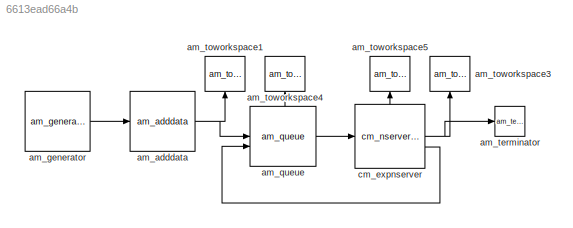
MODEL slx_6613ead66a4b
KIND model
CONFIG AbsTol = auto
CONFIG EnableMultiTasking = off
CONFIG FixedStep = auto
CONFIG MaxStep = auto
CONFIG MinStep = auto
CONFIG RelTol = 1e-3
CONFIG SampleTimeConstraint = Unconstrained
CONFIG SolverName = VariableStepAuto
CONFIG StartTime = 0.0
CONFIG StopTime = 10.0
BLOCK [Reference] am_adddata  REF=NSA_DEVS_LOGISTICS/am_adddata
  SourceBlock = NSA_DEVS_LOGISTICS/am_adddata
  SourceProductName = Logistics
  SourceType = Adddata
BLOCK [Reference] am_generator  REF=NSA_DEVS_SOURCES/am_generator
  SourceBlock = NSA_DEVS_SOURCES/am_generator
  SourceProductName = Sources
  SourceType = Generator
BLOCK [Reference] am_queue  REF=NSA_DEVS_LOGISTICS/am_queue
  SourceBlock = NSA_DEVS_LOGISTICS/am_queue
  SourceProductName = Logistics
  SourceType = Queue
BLOCK [Reference] am_terminator  REF=NSA_DEVS_LOGISTICS/am_terminator
  SourceBlock = NSA_DEVS_LOGISTICS/am_terminator
  SourceProductName = Logistics
  SourceType = Terminator
BLOCK [Reference] am_toworkspace1  REF=NSA_DEVS_SINKS/am_toworkspace
  NameLocation = right
  SourceBlock = NSA_DEVS_SINKS/am_toworkspace
  SourceProductName = Sinks
  SourceType = ToWorkspace
BLOCK [Reference] am_toworkspace3  REF=NSA_DEVS_SINKS/am_toworkspace
  NameLocation = right
  SourceBlock = NSA_DEVS_SINKS/am_toworkspace
  SourceProductName = Sinks
  SourceType = ToWorkspace
BLOCK [Reference] am_toworkspace4  REF=NSA_DEVS_SINKS/am_toworkspace
  NameLocation = right
  SourceBlock = NSA_DEVS_SINKS/am_toworkspace
  SourceProductName = Sinks
  SourceType = ToWorkspace
BLOCK [Reference] am_toworkspace5  REF=NSA_DEVS_SINKS/am_toworkspace
  NameLocation = right
  SourceBlock = NSA_DEVS_SINKS/am_toworkspace
  SourceProductName = Sinks
  SourceType = ToWorkspace
BLOCK [Reference] cm_expnserver  REF=NSA_DEVS_LOGISTICS/cm_nserverDist
  SourceBlock = NSA_DEVS_LOGISTICS/cm_nserverDist
  SourceProductName = Logistics
  SourceType = ExpNServer
NET am_adddata:1 -> am_queue:1, am_toworkspace1:1
LINE am_generator:1 -> am_adddata:1
LINE am_queue:1 -> cm_expnserver:1
LINE am_queue:2 -> am_toworkspace4:1
NET cm_expnserver:1 -> am_terminator:1, am_toworkspace3:1
LINE cm_expnserver:2 -> am_queue:2
LINE cm_expnserver:3 -> am_toworkspace5:1
note: NET lines group one-source signal fan-out (src -> all destinations, sorted); 1:1 wires keep LINE
